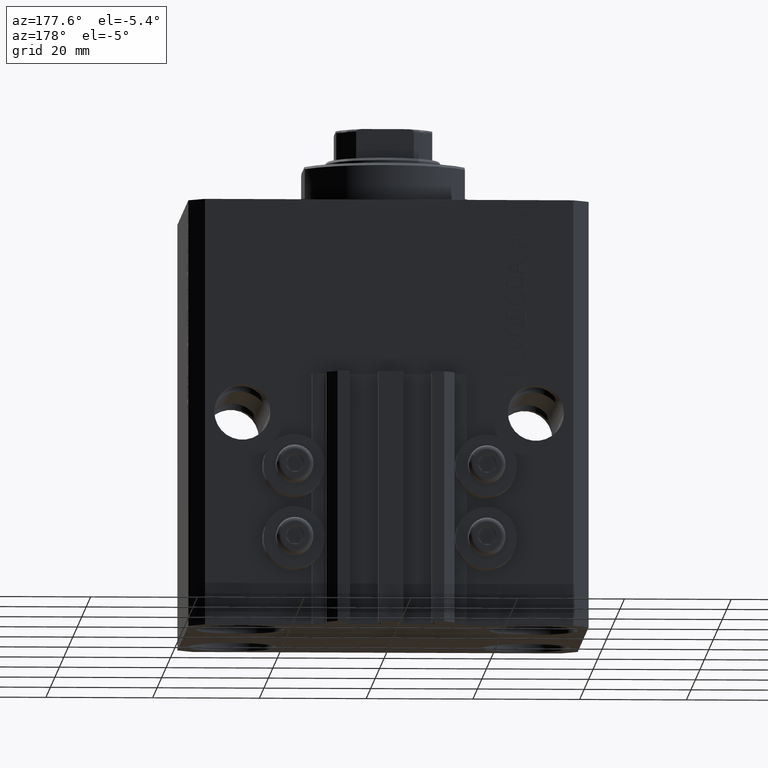
[diagram: clean part render]
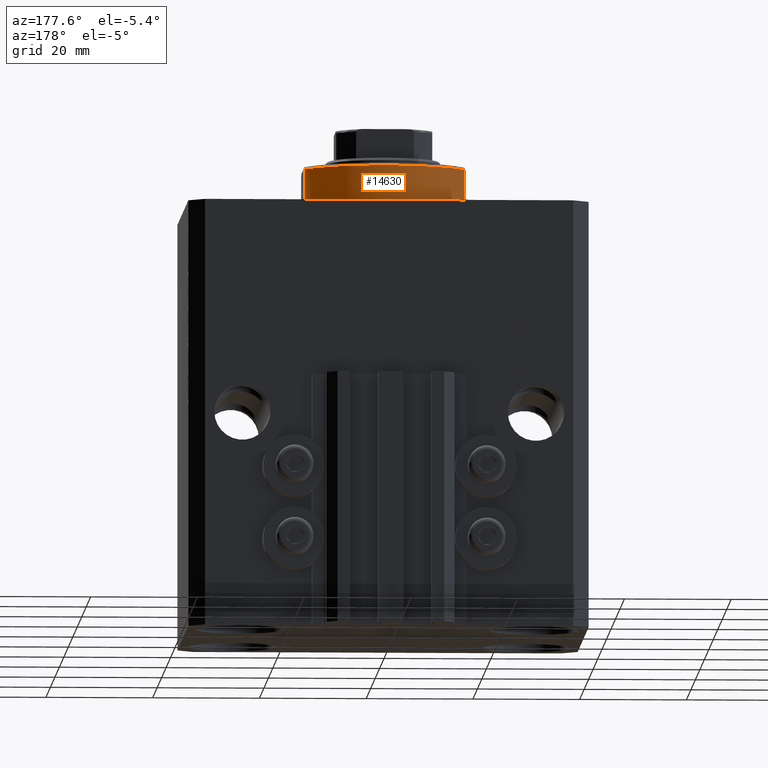
[diagram: same view with one face highlighted and labeled with its STEP entity id]
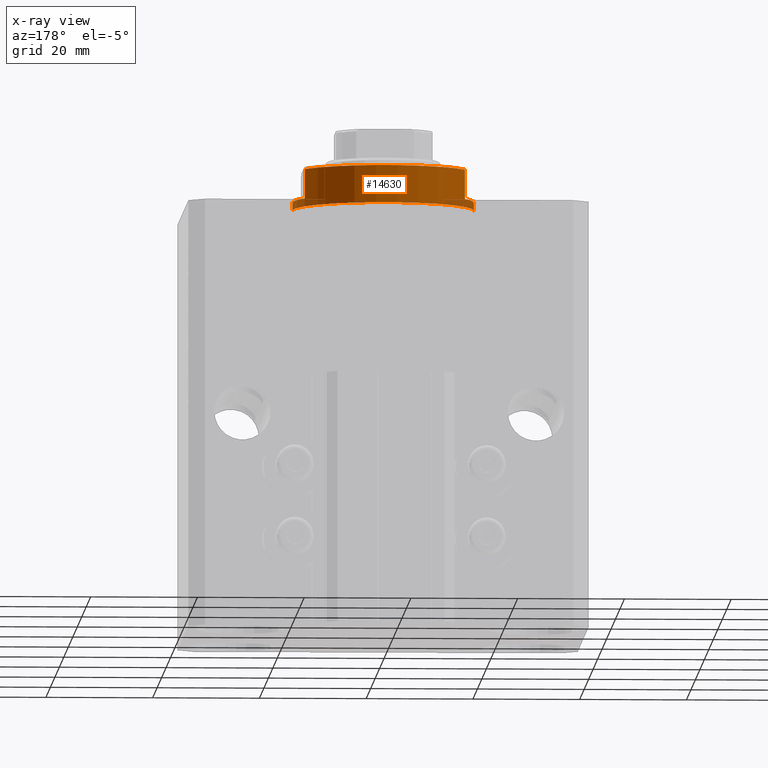
[diagram: x-ray of the same camera — body ghosted, the highlighted face saturated]
A machine part, auxiliary view. The second image highlights one B-rep face of the part: STEP entity #14630.
The next image is the same camera in x-ray: the body ghosted, the highlighted face saturated — about 7% of this face is hidden behind the body in this view.
In plain terms, the highlighted cylindrical surface (partial cylindrical patch) has radius 17 mm, axis along (0, 0, -1).
Its self-contained STEP definition (entity closure, byte-faithful):
#604 = ORIENTED_EDGE ( 'NONE', *, *, #1488, .F. ) ;
#1144 = VERTEX_POINT ( 'NONE', #30081 ) ;
#1268 = DIRECTION ( 'NONE',  ( -0.000000000000000000, -0.000000000000000000, 1.000000000000000000 ) ) ;
#1488 = EDGE_CURVE ( 'NONE', #43622, #1144, #42096, .T. ) ;
#1851 = EDGE_CURVE ( 'NONE', #22991, #4248, #15246, .T. ) ;
#3128 = AXIS2_PLACEMENT_3D ( 'NONE', #20342, #13710, #30984 ) ;
#3816 = ORIENTED_EDGE ( 'NONE', *, *, #23520, .F. ) ;
#4248 = VERTEX_POINT ( 'NONE', #5187 ) ;
#4419 = CARTESIAN_POINT ( 'NONE',  ( 0.000000000000000000, 0.000000000000000000, -2.000000000000000000 ) ) ;
#4689 = VECTOR ( 'NONE', #27361, 1000.000000000000000 ) ;
#5178 = ORIENTED_EDGE ( 'NONE', *, *, #5753, .T. ) ;
#5187 = CARTESIAN_POINT ( 'NONE',  ( -17.00000000000000000, 2.081899558550500280E-15, -0.5000000000000004441 ) ) ;
#5753 = EDGE_CURVE ( 'NONE', #4248, #31674, #17875, .T. ) ;
#6322 = CIRCLE ( 'NONE', #41849, 17.00000000000000000 ) ;
#7044 = CARTESIAN_POINT ( 'NONE',  ( -15.00000000000000000, 8.000000000000001776, -7.500000000000007105 ) ) ;
#7282 = DIRECTION ( 'NONE',  ( 0.000000000000000000, 0.000000000000000000, -1.000000000000000000 ) ) ;
#9367 = CARTESIAN_POINT ( 'NONE',  ( 15.00000000000000000, 8.000000000000001776, -7.500000000000007105 ) ) ;
#9580 = CYLINDRICAL_SURFACE ( 'NONE', #43755, 17.00000000000000000 ) ;
#11062 = DIRECTION ( 'NONE',  ( -1.000000000000000000, 0.000000000000000000, 0.000000000000000000 ) ) ;
#13355 = AXIS2_PLACEMENT_3D ( 'NONE', #25621, #32945, #46718 ) ;
#13710 = DIRECTION ( 'NONE',  ( 0.000000000000000000, 0.000000000000000000, 1.000000000000000000 ) ) ;
#14630 = ADVANCED_FACE ( 'NONE', ( #42001 ), #9580, .T. ) ;
#15004 = LINE ( 'NONE', #44340, #45294 ) ;
#15015 = CARTESIAN_POINT ( 'NONE',  ( -17.00000000000000000, 2.081899558550500280E-15, -8.000000000000000000 ) ) ;
#15081 = VERTEX_POINT ( 'NONE', #30692 ) ;
#15246 = LINE ( 'NONE', #15015, #32090 ) ;
#15584 = CIRCLE ( 'NONE', #26924, 17.00000000000000000 ) ;
#17875 = CIRCLE ( 'NONE', #13355, 17.00000000000000000 ) ;
#19099 = CARTESIAN_POINT ( 'NONE',  ( 17.00000000000000000, 0.000000000000000000, -0.5000000000000004441 ) ) ;
#19113 = VERTEX_POINT ( 'NONE', #29402 ) ;
#19554 = DIRECTION ( 'NONE',  ( 0.000000000000000000, 0.000000000000000000, -1.000000000000000000 ) ) ;
#20322 = CARTESIAN_POINT ( 'NONE',  ( 15.00000000000000000, 8.000000000000001776, -8.000000000000000000 ) ) ;
#20342 = CARTESIAN_POINT ( 'NONE',  ( 0.000000000000000000, 0.000000000000000000, -7.500000000000007105 ) ) ;
#21260 = EDGE_CURVE ( 'NONE', #43622, #27978, #23527, .T. ) ;
#22991 = VERTEX_POINT ( 'NONE', #42847 ) ;
#23520 = EDGE_CURVE ( 'NONE', #19113, #31674, #38507, .T. ) ;
#23527 = CIRCLE ( 'NONE', #3128, 17.00000000000000000 ) ;
#25621 = CARTESIAN_POINT ( 'NONE',  ( 0.000000000000000000, 0.000000000000000000, -0.5000000000000004441 ) ) ;
#26035 = VECTOR ( 'NONE', #45643, 1000.000000000000000 ) ;
#26581 = EDGE_CURVE ( 'NONE', #1144, #19113, #6322, .T. ) ;
#26924 = AXIS2_PLACEMENT_3D ( 'NONE', #4419, #7282, #11062 ) ;
#27361 = DIRECTION ( 'NONE',  ( -0.000000000000000000, -0.000000000000000000, 1.000000000000000000 ) ) ;
#27978 = VERTEX_POINT ( 'NONE', #7044 ) ;
#28944 = DIRECTION ( 'NONE',  ( 1.000000000000000000, 0.000000000000000000, 0.000000000000000000 ) ) ;
#29402 = CARTESIAN_POINT ( 'NONE',  ( 17.00000000000000000, 0.000000000000000000, -2.000000000000000000 ) ) ;
#29446 = DIRECTION ( 'NONE',  ( -0.000000000000000000, -0.000000000000000000, 1.000000000000000000 ) ) ;
#30081 = CARTESIAN_POINT ( 'NONE',  ( 14.99999999999999645, 8.000000000000003553, -2.000000000000000000 ) ) ;
#30191 = EDGE_LOOP ( 'NONE', ( #46825, #33817, #5178, #3816, #35329, #604, #39505, #45729 ) ) ;
#30692 = CARTESIAN_POINT ( 'NONE',  ( -14.99999999999999645, 8.000000000000003553, -2.000000000000000000 ) ) ;
#30984 = DIRECTION ( 'NONE',  ( -1.000000000000000000, 0.000000000000000000, 0.000000000000000000 ) ) ;
#31674 = VERTEX_POINT ( 'NONE', #19099 ) ;
#32090 = VECTOR ( 'NONE', #29446, 1000.000000000000000 ) ;
#32945 = DIRECTION ( 'NONE',  ( -0.000000000000000000, -0.000000000000000000, -1.000000000000000000 ) ) ;
#33817 = ORIENTED_EDGE ( 'NONE', *, *, #1851, .T. ) ;
#35329 = ORIENTED_EDGE ( 'NONE', *, *, #26581, .F. ) ;
#36053 = DIRECTION ( 'NONE',  ( -0.000000000000000000, -0.000000000000000000, 1.000000000000000000 ) ) ;
#36830 = EDGE_CURVE ( 'NONE', #22991, #15081, #15584, .T. ) ;
#37295 = CARTESIAN_POINT ( 'NONE',  ( 0.000000000000000000, 0.000000000000000000, -2.000000000000000000 ) ) ;
#38456 = CARTESIAN_POINT ( 'NONE',  ( 0.000000000000000000, 0.000000000000000000, -8.000000000000000000 ) ) ;
#38507 = LINE ( 'NONE', #41810, #4689 ) ;
#39505 = ORIENTED_EDGE ( 'NONE', *, *, #21260, .T. ) ;
#41562 = DIRECTION ( 'NONE',  ( -1.000000000000000000, 0.000000000000000000, 0.000000000000000000 ) ) ;
#41810 = CARTESIAN_POINT ( 'NONE',  ( 17.00000000000000000, 0.000000000000000000, -8.000000000000000000 ) ) ;
#41849 = AXIS2_PLACEMENT_3D ( 'NONE', #37295, #19554, #41562 ) ;
#42001 = FACE_OUTER_BOUND ( 'NONE', #30191, .T. ) ;
#42096 = LINE ( 'NONE', #20322, #26035 ) ;
#42847 = CARTESIAN_POINT ( 'NONE',  ( -17.00000000000000000, 2.081899558550500280E-15, -2.000000000000000000 ) ) ;
#43622 = VERTEX_POINT ( 'NONE', #9367 ) ;
#43755 = AXIS2_PLACEMENT_3D ( 'NONE', #38456, #36053, #28944 ) ;
#43812 = EDGE_CURVE ( 'NONE', #27978, #15081, #15004, .T. ) ;
#44340 = CARTESIAN_POINT ( 'NONE',  ( -15.00000000000000000, 8.000000000000001776, -8.000000000000000000 ) ) ;
#45294 = VECTOR ( 'NONE', #1268, 1000.000000000000000 ) ;
#45643 = DIRECTION ( 'NONE',  ( -0.000000000000000000, -0.000000000000000000, 1.000000000000000000 ) ) ;
#45729 = ORIENTED_EDGE ( 'NONE', *, *, #43812, .T. ) ;
#46718 = DIRECTION ( 'NONE',  ( 1.000000000000000000, 0.000000000000000000, 0.000000000000000000 ) ) ;
#46825 = ORIENTED_EDGE ( 'NONE', *, *, #36830, .F. ) ;